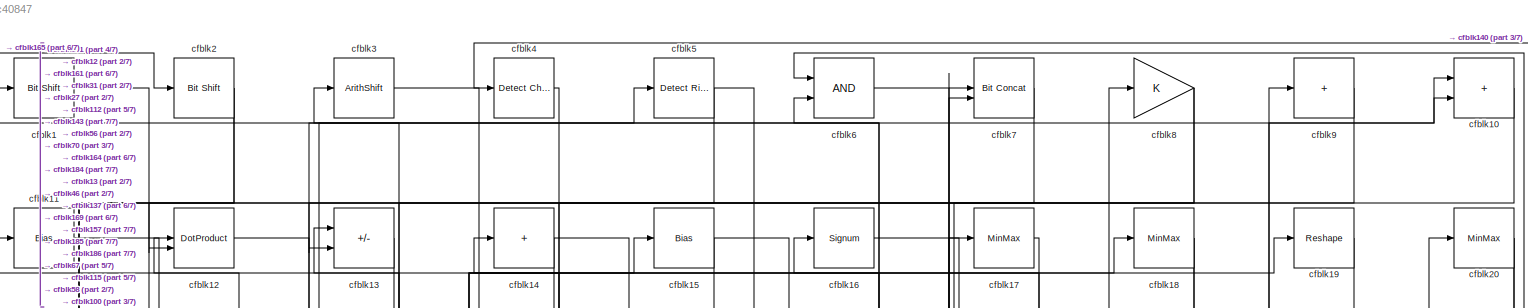
[diagram: root canvas - part 1/7, full width, top band]
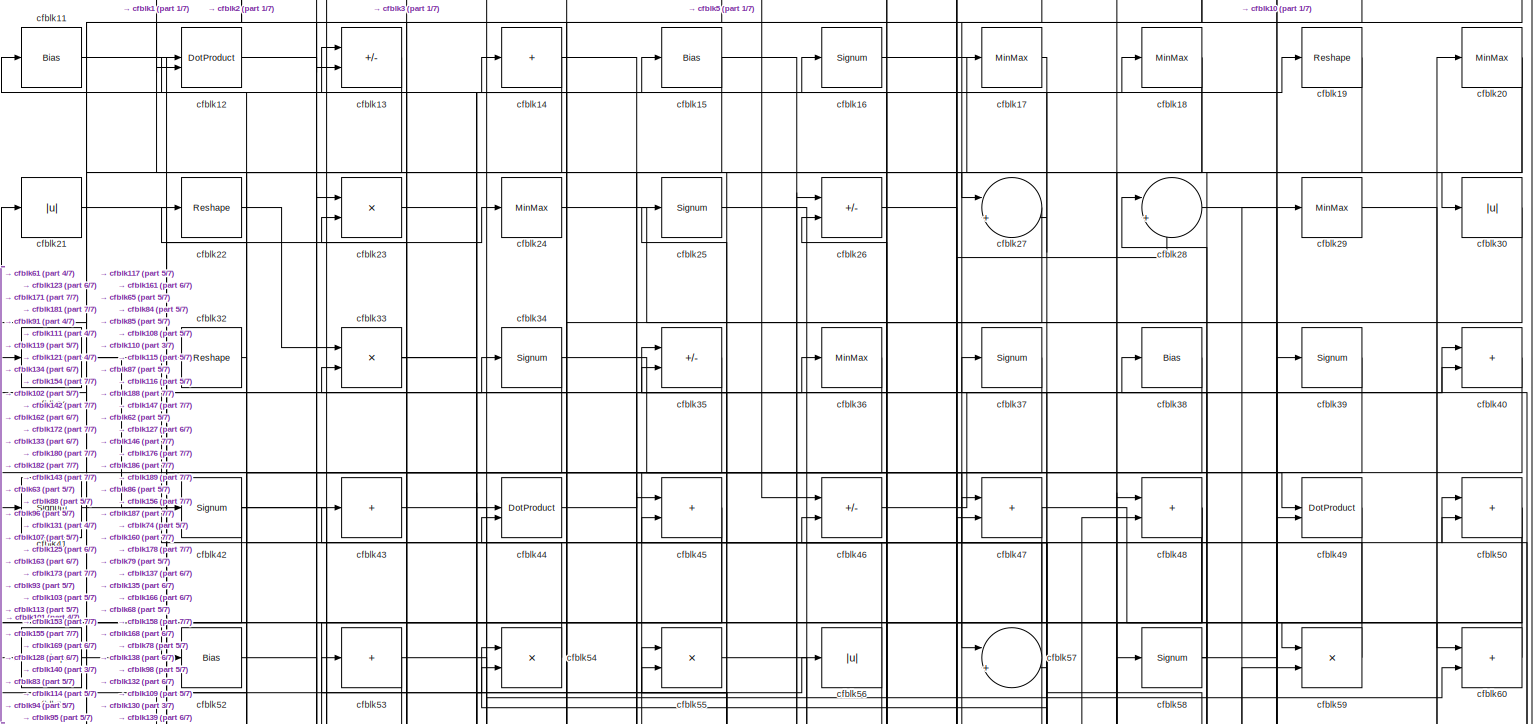
[diagram: root canvas - part 2/7, full width, top band]
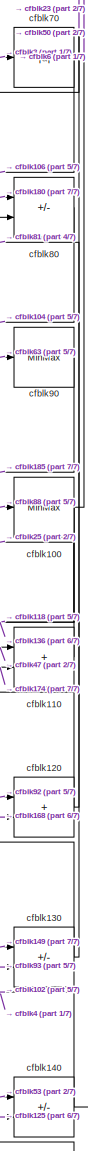
[diagram: root canvas - part 3/7, middle right region]
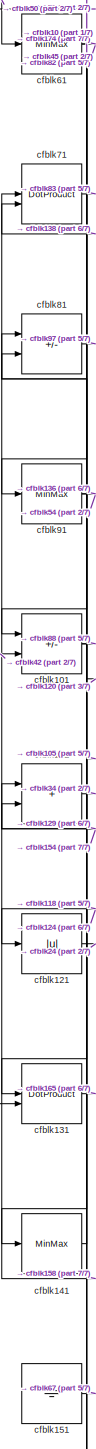
[diagram: root canvas - part 4/7, middle left region]
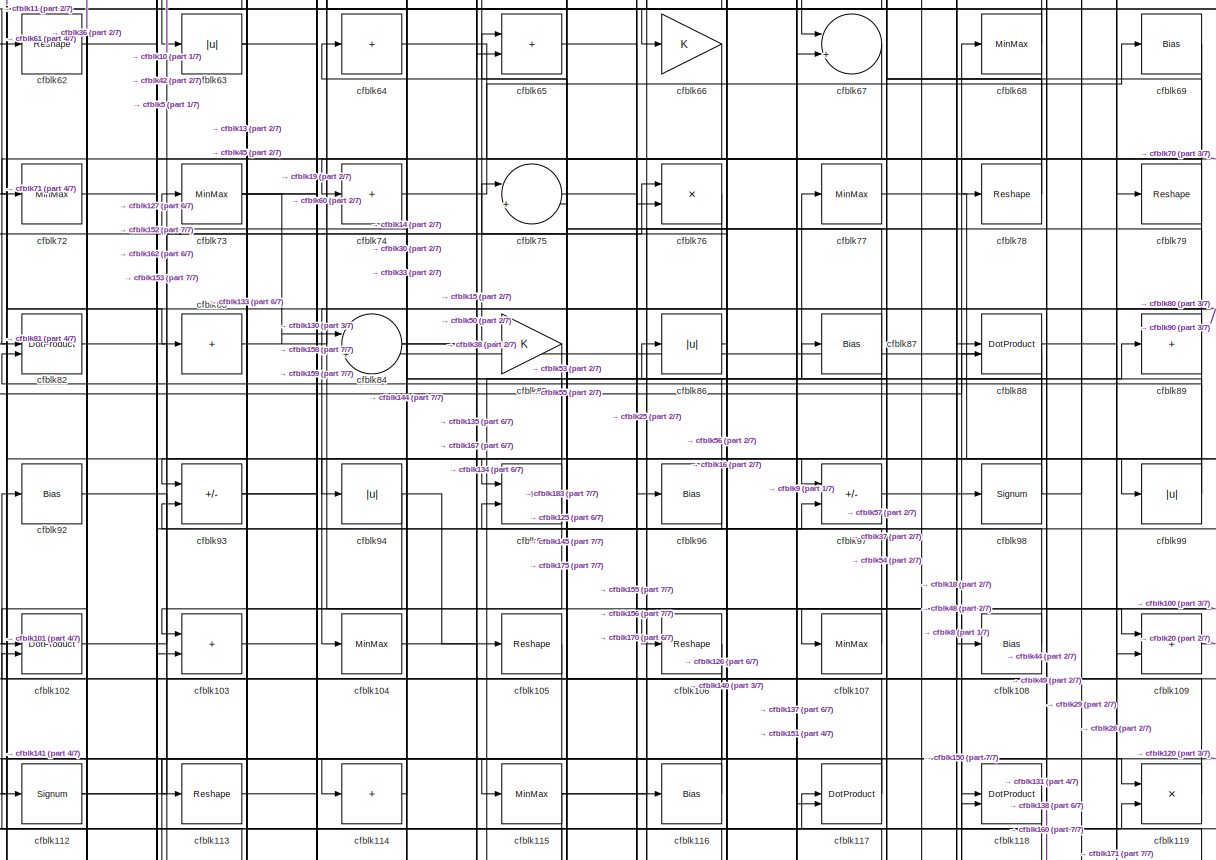
[diagram: root canvas - part 5/7, full width, middle band]
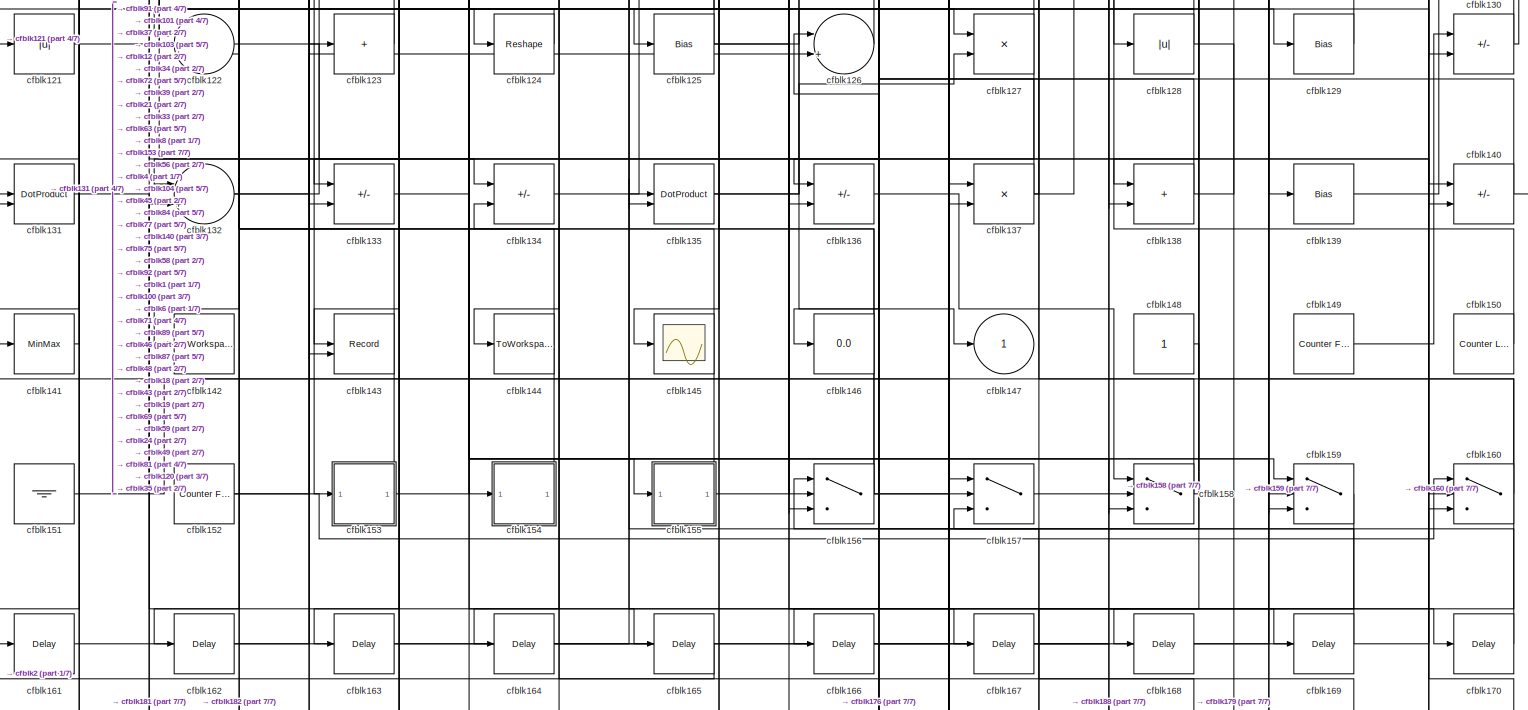
[diagram: root canvas - part 6/7, full width, bottom band]
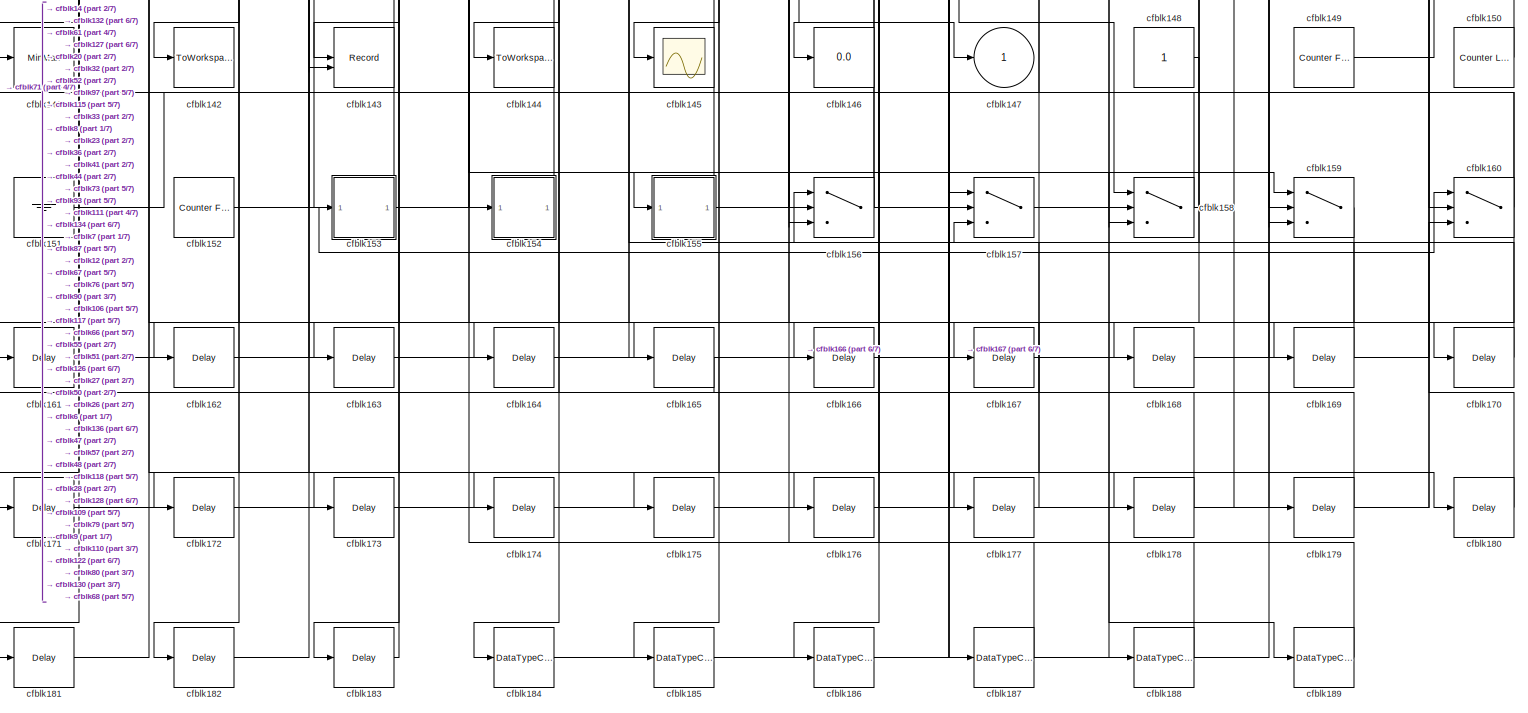
[diagram: root canvas - part 7/7, full width, bottom band]
MODEL slx_33e828c40847
KIND model
CONFIG AbsTol = auto
CONFIG EnableMultiTasking = off
CONFIG FixedStep = auto
CONFIG MaxStep = auto
CONFIG MinStep = auto
CONFIG RelTol = 1e-3
CONFIG SampleTimeConstraint = Unconstrained
CONFIG SolverName = VariableStepAuto
CONFIG StartTime = 0.0
CONFIG StopTime = 10.0
BLOCK [Reference] cfblk1  REF=hdlsllib/Logic and Bit
Operations/Bit Shift
  SourceBlock = hdlsllib/Logic and Bit\nOperations/Bit Shift
  SourceType = Bit Shift
BLOCK [Sum] cfblk10
  IconShape = rectangular
BLOCK [MinMax] cfblk100
BLOCK [Sum] cfblk101
  IconShape = rectangular
  Inputs = +-
BLOCK [DotProduct] cfblk102
  OutDataTypeStr = Inherit: Inherit via internal rule
BLOCK [Sum] cfblk103
  IconShape = rectangular
BLOCK [MinMax] cfblk104
BLOCK [Reshape] cfblk105
BLOCK [Reshape] cfblk106
BLOCK [MinMax] cfblk107
BLOCK [Bias] cfblk108
  Bias = 0.0
  SaturateOnIntegerOverflow = off
BLOCK [Sum] cfblk109
  IconShape = rectangular
BLOCK [Bias] cfblk11
  Bias = 0.0
  SaturateOnIntegerOverflow = off
BLOCK [Sum] cfblk110
  IconShape = rectangular
BLOCK [Sum] cfblk111
  IconShape = rectangular
BLOCK [Signum] cfblk112
BLOCK [Reshape] cfblk113
BLOCK [Sum] cfblk114
  IconShape = rectangular
  Inputs = +
BLOCK [MinMax] cfblk115
BLOCK [Bias] cfblk116
  Bias = 0.0
  SaturateOnIntegerOverflow = off
BLOCK [DotProduct] cfblk117
  OutDataTypeStr = Inherit: Inherit via internal rule
BLOCK [DotProduct] cfblk118
  OutDataTypeStr = Inherit: Inherit via internal rule
BLOCK [Product] cfblk119
  Inputs = */
  RndMeth = Zero
  SaturateOnIntegerOverflow = on
BLOCK [DotProduct] cfblk12
  OutDataTypeStr = Inherit: Inherit via internal rule
BLOCK [Sum] cfblk120
  IconShape = rectangular
BLOCK [Abs] cfblk121
  SaturateOnIntegerOverflow = off
BLOCK [Sum] cfblk122
  Inputs = |++
BLOCK [Sum] cfblk123
  IconShape = rectangular
  Inputs = +
BLOCK [Reshape] cfblk124
BLOCK [Bias] cfblk125
  Bias = 0.0
  SaturateOnIntegerOverflow = off
BLOCK [Sum] cfblk126
  Inputs = |++
BLOCK [Product] cfblk127
  Inputs = */
  RndMeth = Zero
  SaturateOnIntegerOverflow = on
BLOCK [Abs] cfblk128
  SaturateOnIntegerOverflow = off
BLOCK [Bias] cfblk129
  Bias = 0.0
  SaturateOnIntegerOverflow = off
BLOCK [Sum] cfblk13
  IconShape = rectangular
  Inputs = +-
BLOCK [Sum] cfblk130
  IconShape = rectangular
  Inputs = +-
BLOCK [DotProduct] cfblk131
  OutDataTypeStr = Inherit: Inherit via internal rule
BLOCK [Sum] cfblk132
  Inputs = |++
BLOCK [Sum] cfblk133
  IconShape = rectangular
  Inputs = +-
BLOCK [Sum] cfblk134
  IconShape = rectangular
  Inputs = +-
BLOCK [DotProduct] cfblk135
  OutDataTypeStr = Inherit: Inherit via internal rule
BLOCK [Sum] cfblk136
  IconShape = rectangular
  Inputs = +-
BLOCK [Product] cfblk137
  Inputs = */
  RndMeth = Zero
  SaturateOnIntegerOverflow = on
BLOCK [Sum] cfblk138
  IconShape = rectangular
BLOCK [Bias] cfblk139
  Bias = 0.0
  SaturateOnIntegerOverflow = off
BLOCK [Sum] cfblk14
  IconShape = rectangular
  Inputs = +
BLOCK [Sum] cfblk140
  IconShape = rectangular
  Inputs = +-
BLOCK [MinMax] cfblk141
BLOCK [ToWorkspace] cfblk142
  MaxDataPoints = inf
  SampleTime = -1
  SaveFormat = Timeseries
  VariableName = simout
BLOCK [Record] cfblk143
  CompatibilityTag = XY
  FileSettingsInternal = {"entries":[{"content":{"excelSettings":{"content":{},"type":"Streamout.ExcelSettings"}},"type":"Streamout.FileSettingStorage","uuid":""}],"packageUris":["http:\/\/schema.mathworks.com\/mf0\/streamout_blocks\/R2020a"],"version":"1.0"}
  Layout = [1 1]
  SignalsInternal = {"entries":[{"content":{},"type":"RecordBlkView.InputSignals","uuid":""}],"packageUris":["http:\/\/schema.mathworks.com\/mf0\/streamout_blocks\/R2020a"],"version":"1.0"}
  VisualizationBindings = {"xyplotplugin":{"info":[{"series":[{"bindingParametersList":[{"parameter":"X-Axis","signalID":3228,"signalName":"cfblk8"},{"parameter":"Y-Axis","signalID":3232,"signalName":"cfblk48"}],"seriesID":35300}],"subplotID":1}]}}
  st = -1
BLOCK [ToWorkspace] cfblk144
  MaxDataPoints = inf
  SampleTime = -1
  SaveFormat = Timeseries
  VariableName = simout
BLOCK [Scope] cfblk145
  Floating = off
  NumInputPorts = 1
  ScopeSpecificationString = Simulink.scopes.TimeScopeBlockCfg('CurrentConfiguration', extmgr.ConfigurationSet(extmgr.Configuration('Core','General UI',true),extmgr.Configuration('Core','Source UI',true),extmgr.Configuration('Sources','WiredSimulink',true,'DataLoggingVariableName','ScopeData2','DataLoggingSaveFormat','Array','DataLoggingLimitDataPoints',true,'DataLoggingDecimation','1'),extmgr.Configuration('Visuals','Time Do...<+868ch>
BLOCK [Display] cfblk146
  Decimation = 1
BLOCK [Outport] cfblk147
  VectorParamsAs1DForOutWhenUnconnected = off
BLOCK [Constant] cfblk148
  SampleTime = -1
BLOCK [Reference] cfblk149  REF=hdlsllib/Sources/Counter
Free-Running
  SourceBlock = hdlsllib/Sources/Counter\nFree-Running
  SourceType = Counter Free-Running
BLOCK [Bias] cfblk15
  Bias = 0.0
  SaturateOnIntegerOverflow = off
BLOCK [Reference] cfblk150  REF=hdlsllib/Sources/Counter
Limited
  SourceBlock = hdlsllib/Sources/Counter\nLimited
  SourceType = Counter Limited
BLOCK [Ground] cfblk151
BLOCK [Reference] cfblk152  REF=hdlsllib/Sources/Counter
Free-Running
  SourceBlock = hdlsllib/Sources/Counter\nFree-Running
  SourceType = Counter Free-Running
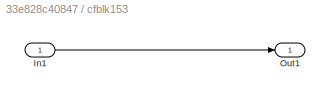
BLOCK [SubSystem] cfblk153
  LibrarySourceBlock = hdlsllib/Ports &\nSubsystems/Subsystem
BLOCK [Inport] cfblk153/In1
BLOCK [Outport] cfblk153/Out1
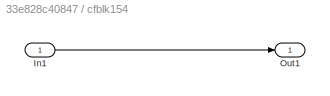
BLOCK [SubSystem] cfblk154
  LibrarySourceBlock = hdlsllib/Ports &\nSubsystems/Subsystem
BLOCK [Inport] cfblk154/In1
BLOCK [Outport] cfblk154/Out1
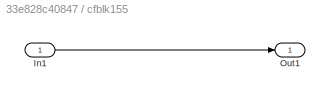
BLOCK [SubSystem] cfblk155
  LibrarySourceBlock = hdlsllib/Ports &\nSubsystems/Subsystem
BLOCK [Inport] cfblk155/In1
BLOCK [Outport] cfblk155/Out1
BLOCK [Switch] cfblk156
  InputSameDT = off
  SaturateOnIntegerOverflow = off
BLOCK [Switch] cfblk157
  InputSameDT = off
  SaturateOnIntegerOverflow = off
BLOCK [Switch] cfblk158
  InputSameDT = off
  SaturateOnIntegerOverflow = off
BLOCK [Switch] cfblk159
  InputSameDT = off
  SaturateOnIntegerOverflow = off
BLOCK [Signum] cfblk16
BLOCK [Switch] cfblk160
  InputSameDT = off
  SaturateOnIntegerOverflow = off
BLOCK [Delay] cfblk161
  InputPortMap = u0
  SampleTime = 1
BLOCK [Delay] cfblk162
  InputPortMap = u0
  SampleTime = 1
BLOCK [Delay] cfblk163
  InputPortMap = u0
  SampleTime = 1
BLOCK [Delay] cfblk164
  InputPortMap = u0
  SampleTime = 1
BLOCK [Delay] cfblk165
  InputPortMap = u0
  SampleTime = 1
BLOCK [Delay] cfblk166
  InputPortMap = u0
  SampleTime = 1
BLOCK [Delay] cfblk167
  InputPortMap = u0
  SampleTime = 1
BLOCK [Delay] cfblk168
  InputPortMap = u0
  SampleTime = 1
BLOCK [Delay] cfblk169
  InputPortMap = u0
  SampleTime = 1
BLOCK [MinMax] cfblk17
BLOCK [Delay] cfblk170
  InputPortMap = u0
  SampleTime = 1
BLOCK [Delay] cfblk171
  InputPortMap = u0
  SampleTime = 1
BLOCK [Delay] cfblk172
  InputPortMap = u0
  SampleTime = 1
BLOCK [Delay] cfblk173
  InputPortMap = u0
  SampleTime = 1
BLOCK [Delay] cfblk174
  InputPortMap = u0
  SampleTime = 1
BLOCK [Delay] cfblk175
  InputPortMap = u0
  SampleTime = 1
BLOCK [Delay] cfblk176
  InputPortMap = u0
  SampleTime = 1
BLOCK [Delay] cfblk177
  InputPortMap = u0
  SampleTime = 1
BLOCK [Delay] cfblk178
  InputPortMap = u0
  SampleTime = 1
BLOCK [Delay] cfblk179
  InputPortMap = u0
  SampleTime = 1
BLOCK [MinMax] cfblk18
BLOCK [Delay] cfblk180
  InputPortMap = u0
  SampleTime = 1
BLOCK [Delay] cfblk181
  InputPortMap = u0
  SampleTime = 1
BLOCK [Delay] cfblk182
  InputPortMap = u0
  SampleTime = 1
BLOCK [Delay] cfblk183
  InputPortMap = u0
  SampleTime = 1
BLOCK [DataTypeConversion] cfblk184
  OutDataTypeStr = uint8
  RndMeth = Floor
  SaturateOnIntegerOverflow = off
BLOCK [DataTypeConversion] cfblk185
  OutDataTypeStr = uint8
  RndMeth = Floor
  SaturateOnIntegerOverflow = off
BLOCK [DataTypeConversion] cfblk186
  OutDataTypeStr = uint8
  RndMeth = Floor
  SaturateOnIntegerOverflow = off
BLOCK [DataTypeConversion] cfblk187
  OutDataTypeStr = uint8
  RndMeth = Floor
  SaturateOnIntegerOverflow = off
BLOCK [DataTypeConversion] cfblk188
  OutDataTypeStr = uint8
  RndMeth = Floor
  SaturateOnIntegerOverflow = off
BLOCK [DataTypeConversion] cfblk189
  OutDataTypeStr = uint8
  RndMeth = Floor
  SaturateOnIntegerOverflow = off
BLOCK [Reshape] cfblk19
BLOCK [Reference] cfblk2  REF=hdlsllib/Logic and Bit
Operations/Bit Shift
  SourceBlock = hdlsllib/Logic and Bit\nOperations/Bit Shift
  SourceType = Bit Shift
BLOCK [MinMax] cfblk20
BLOCK [Abs] cfblk21
  SaturateOnIntegerOverflow = off
BLOCK [Reshape] cfblk22
BLOCK [Product] cfblk23
  Inputs = */
  RndMeth = Zero
  SaturateOnIntegerOverflow = on
BLOCK [MinMax] cfblk24
BLOCK [Signum] cfblk25
BLOCK [Sum] cfblk26
  IconShape = rectangular
  Inputs = +-
BLOCK [Sum] cfblk27
  Inputs = |++
BLOCK [Sum] cfblk28
  Inputs = |++
BLOCK [MinMax] cfblk29
BLOCK [ArithShift] cfblk3
  BitShiftNumber = 8
  InputPortMap = u0
BLOCK [Abs] cfblk30
  SaturateOnIntegerOverflow = off
BLOCK [MinMax] cfblk31
BLOCK [Reshape] cfblk32
BLOCK [Product] cfblk33
  Inputs = */
  RndMeth = Zero
  SaturateOnIntegerOverflow = on
BLOCK [Signum] cfblk34
BLOCK [Sum] cfblk35
  IconShape = rectangular
  Inputs = +-
BLOCK [MinMax] cfblk36
BLOCK [Signum] cfblk37
BLOCK [Bias] cfblk38
  Bias = 0.0
  SaturateOnIntegerOverflow = off
BLOCK [Signum] cfblk39
BLOCK [Reference] cfblk4  REF=simulink/Logic and Bit
Operations/Detect
Change
  LibrarySourceBlock = hdlsllib/Logic and Bit\nOperations/Detect\nChange
  SourceBlock = simulink/Logic and Bit\nOperations/Detect\nChange
  SourceType = Detect Change
BLOCK [Sum] cfblk40
  IconShape = rectangular
BLOCK [Signum] cfblk41
BLOCK [Signum] cfblk42
BLOCK [Sum] cfblk43
  IconShape = rectangular
  Inputs = +
BLOCK [DotProduct] cfblk44
  OutDataTypeStr = Inherit: Inherit via internal rule
BLOCK [Sum] cfblk45
  IconShape = rectangular
BLOCK [Sum] cfblk46
  IconShape = rectangular
  Inputs = +-
BLOCK [Sum] cfblk47
  IconShape = rectangular
BLOCK [Sum] cfblk48
  IconShape = rectangular
BLOCK [DotProduct] cfblk49
  OutDataTypeStr = Inherit: Inherit via internal rule
BLOCK [Reference] cfblk5  REF=hdlsllib/Logic and Bit
Operations/Detect Rise
Nonnegative
  SourceBlock = hdlsllib/Logic and Bit\nOperations/Detect Rise\nNonnegative
  SourceType = Detect Rise Nonnegative
BLOCK [Sum] cfblk50
  IconShape = rectangular
BLOCK [Reshape] cfblk51
BLOCK [Bias] cfblk52
  Bias = 0.0
  SaturateOnIntegerOverflow = off
BLOCK [Sum] cfblk53
  IconShape = rectangular
  Inputs = +
BLOCK [Product] cfblk54
  Inputs = */
  RndMeth = Zero
  SaturateOnIntegerOverflow = on
BLOCK [Product] cfblk55
  Inputs = */
  RndMeth = Zero
  SaturateOnIntegerOverflow = on
BLOCK [Abs] cfblk56
  SaturateOnIntegerOverflow = off
BLOCK [Sum] cfblk57
  Inputs = |++
BLOCK [Signum] cfblk58
BLOCK [Product] cfblk59
  Inputs = */
  RndMeth = Zero
  SaturateOnIntegerOverflow = on
BLOCK [Logic] cfblk6
  AllPortsSameDT = off
  OutDataTypeStr = boolean
BLOCK [Sum] cfblk60
  IconShape = rectangular
BLOCK [MinMax] cfblk61
BLOCK [Reshape] cfblk62
BLOCK [Abs] cfblk63
  SaturateOnIntegerOverflow = off
BLOCK [Sum] cfblk64
  IconShape = rectangular
  Inputs = +
BLOCK [Sum] cfblk65
  IconShape = rectangular
BLOCK [Gain] cfblk66
BLOCK [Sum] cfblk67
  Inputs = |++
BLOCK [MinMax] cfblk68
BLOCK [Bias] cfblk69
  Bias = 0.0
  SaturateOnIntegerOverflow = off
BLOCK [Reference] cfblk7  REF=hdlsllib/Logic and Bit
Operations/Bit Concat
  SourceBlock = hdlsllib/Logic and Bit\nOperations/Bit Concat
  SourceType = Bit Concat
BLOCK [Abs] cfblk70
  SaturateOnIntegerOverflow = off
BLOCK [DotProduct] cfblk71
  OutDataTypeStr = Inherit: Inherit via internal rule
BLOCK [MinMax] cfblk72
BLOCK [MinMax] cfblk73
BLOCK [Sum] cfblk74
  IconShape = rectangular
  Inputs = +
BLOCK [Sum] cfblk75
  Inputs = |++
BLOCK [Product] cfblk76
  Inputs = */
  RndMeth = Zero
  SaturateOnIntegerOverflow = on
BLOCK [MinMax] cfblk77
BLOCK [Reshape] cfblk78
BLOCK [Reshape] cfblk79
BLOCK [Gain] cfblk8
BLOCK [Sum] cfblk80
  IconShape = rectangular
  Inputs = +-
BLOCK [Sum] cfblk81
  IconShape = rectangular
  Inputs = +-
BLOCK [DotProduct] cfblk82
  OutDataTypeStr = Inherit: Inherit via internal rule
BLOCK [Sum] cfblk83
  IconShape = rectangular
  Inputs = +
BLOCK [Sum] cfblk84
  Inputs = |++
BLOCK [Gain] cfblk85
BLOCK [Abs] cfblk86
  SaturateOnIntegerOverflow = off
BLOCK [Bias] cfblk87
  Bias = 0.0
  SaturateOnIntegerOverflow = off
BLOCK [DotProduct] cfblk88
  OutDataTypeStr = Inherit: Inherit via internal rule
BLOCK [Sum] cfblk89
  IconShape = rectangular
  Inputs = +
BLOCK [Sum] cfblk9
  IconShape = rectangular
  Inputs = +
BLOCK [MinMax] cfblk90
BLOCK [MinMax] cfblk91
BLOCK [Bias] cfblk92
  Bias = 0.0
  SaturateOnIntegerOverflow = off
BLOCK [Sum] cfblk93
  IconShape = rectangular
  Inputs = +-
BLOCK [Abs] cfblk94
  SaturateOnIntegerOverflow = off
BLOCK [Sum] cfblk95
  IconShape = rectangular
BLOCK [Bias] cfblk96
  Bias = 0.0
  SaturateOnIntegerOverflow = off
BLOCK [Sum] cfblk97
  IconShape = rectangular
  Inputs = +-
BLOCK [Signum] cfblk98
BLOCK [Abs] cfblk99
  SaturateOnIntegerOverflow = off
NET cfblk100:1 -> cfblk118:1, cfblk136:1, cfblk6:1
NET cfblk101:1 -> cfblk124:1, cfblk88:2
LINE cfblk102:1 -> cfblk76:1
LINE cfblk103:1 -> cfblk18:1
LINE cfblk104:1 -> cfblk135:2
LINE cfblk105:1 -> cfblk141:1
NET cfblk106:1 -> cfblk153:1, cfblk156:3
LINE cfblk107:1 -> cfblk13:1
LINE cfblk108:1 -> cfblk55:1
LINE cfblk109:1 -> cfblk20:1
LINE cfblk10:1 -> cfblk101:1
LINE cfblk110:1 -> cfblk25:1
LINE cfblk111:1 -> cfblk34:1
NET cfblk112:1 -> cfblk10:2, cfblk5:1
LINE cfblk113:1 -> cfblk19:1
LINE cfblk114:1 -> cfblk14:1
NET cfblk115:1 -> cfblk119:2, cfblk183:1, cfblk8:1
LINE cfblk116:1 -> cfblk75:1
NET cfblk117:1 -> cfblk112:1, cfblk65:1
LINE cfblk118:1 -> cfblk131:1
LINE cfblk119:1 -> cfblk37:1
LINE cfblk11:1 -> cfblk119:1
NET cfblk120:1 -> cfblk80:2, cfblk81:2
LINE cfblk121:1 -> cfblk24:1
LINE cfblk122:1 -> cfblk160:2
LINE cfblk123:1 -> cfblk21:1
LINE cfblk124:1 -> cfblk121:1
NET cfblk125:1 -> cfblk129:1, cfblk140:2, cfblk43:1
LINE cfblk126:1 -> cfblk92:1
NET cfblk127:1 -> cfblk182:1, cfblk46:2
NET cfblk128:1 -> cfblk122:1, cfblk179:1
LINE cfblk129:1 -> cfblk81:1
LINE cfblk12:1 -> cfblk123:1
NET cfblk130:1 -> cfblk23:2, cfblk50:1
LINE cfblk131:1 -> cfblk165:1
NET cfblk132:1 -> cfblk126:2, cfblk39:1
LINE cfblk133:1 -> cfblk56:1
LINE cfblk134:1 -> cfblk77:1
NET cfblk135:1 -> cfblk127:2, cfblk58:1
LINE cfblk136:1 -> cfblk158:1
NET cfblk137:1 -> cfblk1:1, cfblk48:2, cfblk87:1
NET cfblk138:1 -> cfblk59:2, cfblk71:2
LINE cfblk139:1 -> cfblk35:1
LINE cfblk13:1 -> cfblk52:1
NET cfblk140:1 -> cfblk102:2, cfblk4:1
LINE cfblk141:1 -> cfblk111:2
LINE cfblk148:1 -> cfblk156:1
LINE cfblk149:1 -> cfblk130:1
NET cfblk14:1 -> cfblk117:2, cfblk181:1
LINE cfblk150:1 -> cfblk68:1
LINE cfblk151:1 -> cfblk67:2
NET cfblk152:1 -> cfblk160:1, cfblk97:2
LINE cfblk153/In1:1 -> cfblk153/Out1:1
NET cfblk153:1 -> cfblk122:2, cfblk36:1
LINE cfblk154/In1:1 -> cfblk154/Out1:1
LINE cfblk154:1 -> cfblk111:1
LINE cfblk155/In1:1 -> cfblk155/Out1:1
NET cfblk155:1 -> cfblk117:1, cfblk12:1
NET cfblk156:1 -> cfblk178:1, cfblk28:2, cfblk51:1, cfblk55:2
LINE cfblk157:1 -> cfblk189:1
NET cfblk158:1 -> cfblk28:1, cfblk71:1
LINE cfblk159:1 -> cfblk166:1
NET cfblk15:1 -> cfblk116:1, cfblk65:2
NET cfblk160:1 -> cfblk118:2, cfblk177:1, cfblk47:1
LINE cfblk161:1 -> cfblk45:1
LINE cfblk162:1 -> cfblk103:2
LINE cfblk163:1 -> cfblk49:2
LINE cfblk164:1 -> cfblk137:1
LINE cfblk165:1 -> cfblk2:1
LINE cfblk166:1 -> cfblk48:1
LINE cfblk167:1 -> cfblk188:1
LINE cfblk168:1 -> cfblk120:2
LINE cfblk169:1 -> cfblk6:2
LINE cfblk16:1 -> cfblk30:1
LINE cfblk170:1 -> cfblk135:1
LINE cfblk171:1 -> cfblk109:2
LINE cfblk172:1 -> cfblk47:2
LINE cfblk173:1 -> cfblk160:3
LINE cfblk174:1 -> cfblk110:2
LINE cfblk175:1 -> cfblk157:2
LINE cfblk176:1 -> cfblk126:1
LINE cfblk177:1 -> cfblk157:3
LINE cfblk178:1 -> cfblk57:2
LINE cfblk179:1 -> cfblk134:2
LINE cfblk17:1 -> cfblk27:2
LINE cfblk180:1 -> cfblk80:1
LINE cfblk181:1 -> cfblk132:2
LINE cfblk182:1 -> cfblk23:1
LINE cfblk183:1 -> cfblk93:2
LINE cfblk184:1 -> cfblk9:1
LINE cfblk185:1 -> cfblk7:1
LINE cfblk186:1 -> cfblk7:2
LINE cfblk187:1 -> cfblk44:1
LINE cfblk188:1 -> cfblk26:1
LINE cfblk189:1 -> cfblk26:2
NET cfblk18:1 -> cfblk115:1, cfblk138:2
LINE cfblk19:1 -> cfblk168:1
LINE cfblk1:1 -> cfblk27:1
NET cfblk20:1 -> cfblk171:1, cfblk172:1
LINE cfblk21:1 -> cfblk134:1
LINE cfblk22:1 -> cfblk33:1
LINE cfblk23:1 -> cfblk155:1
LINE cfblk24:1 -> cfblk139:1
LINE cfblk25:1 -> cfblk98:1
LINE cfblk26:1 -> cfblk187:1
LINE cfblk27:1 -> cfblk146:1
LINE cfblk28:1 -> cfblk79:1
LINE cfblk29:1 -> cfblk60:1
NET cfblk2:1 -> cfblk12:2, cfblk31:1
LINE cfblk30:1 -> cfblk94:1
NET cfblk31:1 -> cfblk42:1, cfblk49:1
LINE cfblk32:1 -> cfblk142:1
NET cfblk33:1 -> cfblk15:1, cfblk169:1, cfblk173:1
NET cfblk34:1 -> cfblk133:2, cfblk57:1
LINE cfblk35:1 -> cfblk163:1
LINE cfblk36:1 -> cfblk102:1
LINE cfblk37:1 -> cfblk132:1
LINE cfblk38:1 -> cfblk85:1
LINE cfblk39:1 -> cfblk162:1
LINE cfblk3:1 -> cfblk70:1
LINE cfblk40:1 -> cfblk41:1
LINE cfblk41:1 -> cfblk154:1
NET cfblk42:1 -> cfblk101:2, cfblk88:1, cfblk96:1
LINE cfblk43:1 -> cfblk128:1
LINE cfblk44:1 -> cfblk40:1
NET cfblk45:1 -> cfblk91:1, cfblk93:1
LINE cfblk46:1 -> cfblk40:2
NET cfblk47:1 -> cfblk110:1, cfblk176:1
NET cfblk48:1 -> cfblk143:2, cfblk158:2, cfblk63:1
LINE cfblk49:1 -> cfblk78:1
LINE cfblk4:1 -> cfblk164:1
NET cfblk50:1 -> cfblk186:1, cfblk61:1
LINE cfblk51:1 -> cfblk17:1
LINE cfblk52:1 -> cfblk180:1
NET cfblk53:1 -> cfblk131:2, cfblk140:1
LINE cfblk54:1 -> cfblk32:1
LINE cfblk55:1 -> cfblk147:1
NET cfblk56:1 -> cfblk3:1, cfblk62:1
NET cfblk57:1 -> cfblk22:1, cfblk74:1
NET cfblk58:1 -> cfblk10:1, cfblk38:1
LINE cfblk59:1 -> cfblk35:2
NET cfblk5:1 -> cfblk13:2, cfblk46:1
LINE cfblk60:1 -> cfblk59:1
NET cfblk61:1 -> cfblk174:1, cfblk82:1
LINE cfblk62:1 -> cfblk76:2
NET cfblk63:1 -> cfblk133:1, cfblk90:1
LINE cfblk64:1 -> cfblk108:1
LINE cfblk65:1 -> cfblk109:1
LINE cfblk66:1 -> cfblk156:2
LINE cfblk67:1 -> cfblk175:1
NET cfblk68:1 -> cfblk44:2, cfblk66:1, cfblk72:1
NET cfblk69:1 -> cfblk125:1, cfblk138:1
LINE cfblk6:1 -> cfblk157:1
LINE cfblk70:1 -> cfblk106:1
LINE cfblk71:1 -> cfblk83:1
LINE cfblk72:1 -> cfblk127:1
NET cfblk73:1 -> cfblk159:1, cfblk159:3, cfblk84:1
LINE cfblk74:1 -> cfblk69:1
LINE cfblk75:1 -> cfblk170:1
LINE cfblk76:1 -> cfblk145:1
LINE cfblk77:1 -> cfblk99:1
NET cfblk78:1 -> cfblk11:1, cfblk45:2
NET cfblk79:1 -> cfblk159:2, cfblk54:2
LINE cfblk7:1 -> cfblk184:1
LINE cfblk80:1 -> cfblk104:1
LINE cfblk81:1 -> cfblk97:1
LINE cfblk82:1 -> cfblk95:1
LINE cfblk83:1 -> cfblk60:2
NET cfblk84:1 -> cfblk167:1, cfblk50:2
LINE cfblk85:1 -> cfblk114:1
LINE cfblk86:1 -> cfblk16:1
NET cfblk87:1 -> cfblk144:1, cfblk53:1
NET cfblk88:1 -> cfblk100:1, cfblk107:1
NET cfblk89:1 -> cfblk137:2, cfblk64:1
NET cfblk8:1 -> cfblk143:1, cfblk161:1
LINE cfblk90:1 -> cfblk185:1
NET cfblk91:1 -> cfblk136:2, cfblk54:1
LINE cfblk92:1 -> cfblk120:1
NET cfblk93:1 -> cfblk130:2, cfblk158:3
NET cfblk94:1 -> cfblk103:1, cfblk105:1
NET cfblk95:1 -> cfblk113:1, cfblk33:2
NET cfblk96:1 -> cfblk75:2, cfblk95:2
LINE cfblk97:1 -> cfblk89:1
NET cfblk98:1 -> cfblk29:1, cfblk73:1, cfblk84:2
NET cfblk99:1 -> cfblk82:2, cfblk86:1
LINE cfblk9:1 -> cfblk67:1
note: NET lines group one-source signal fan-out (src -> all destinations, sorted); 1:1 wires keep LINE
